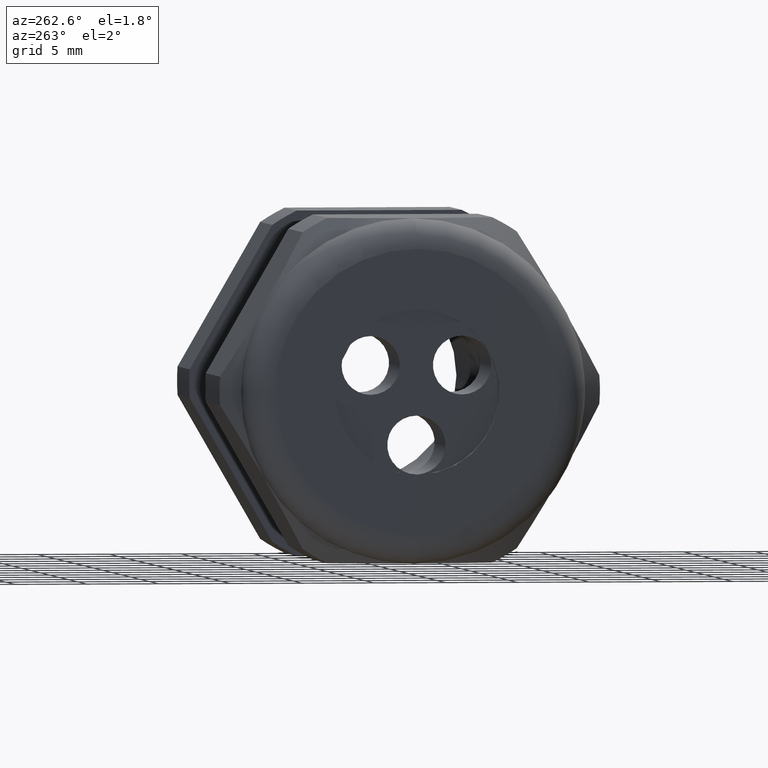
[diagram: clean part render]
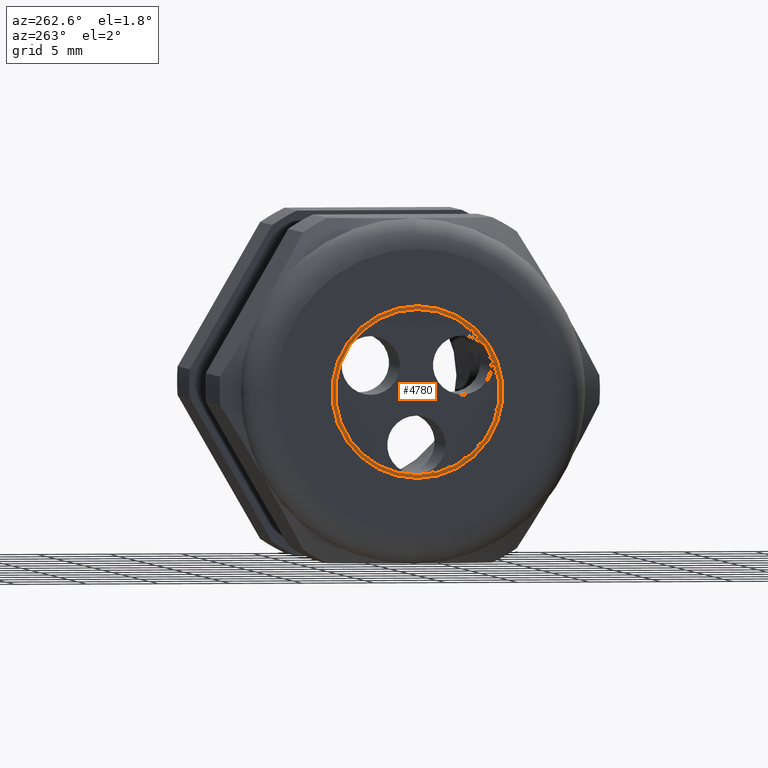
[diagram: same view with one face highlighted and labeled with its STEP entity id]
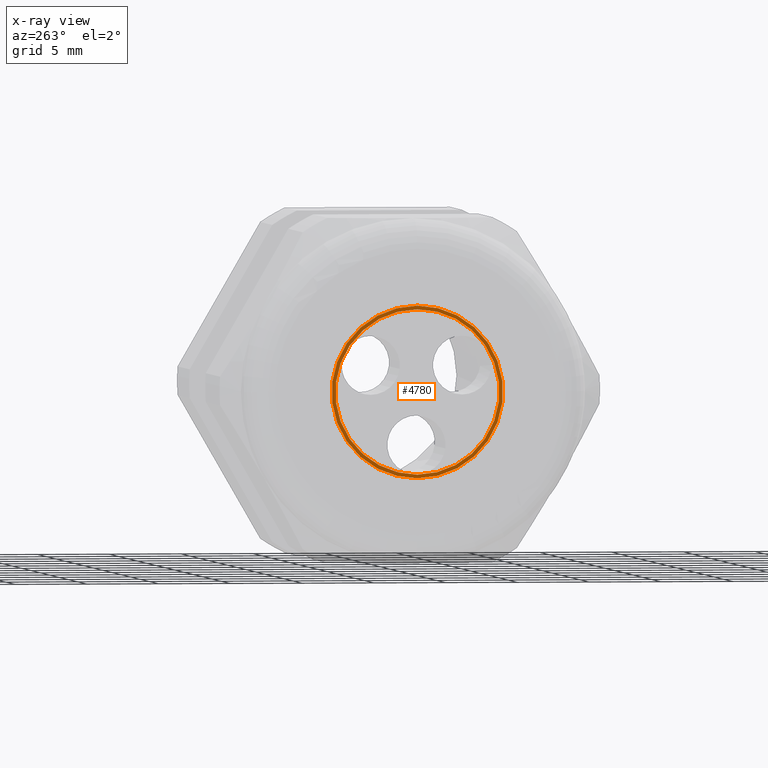
[diagram: x-ray of the same camera — body ghosted, the highlighted face saturated]
A machine part, auxiliary view. The second image highlights one B-rep face of the part: STEP entity #4780.
The next image is the same camera in x-ray: the body ghosted, the highlighted face saturated — about 0% of this face is hidden behind the body in this view.
In plain terms, the highlighted planar face has unit normal (-1, 0, 0).
Its self-contained STEP definition (entity closure, byte-faithful):
#1632 = DIRECTION ( 'NONE',  ( 0.0000000000000000000, 0.0000000000000000000, 1.000000000000000000 ) ) ;
#1633 = DIRECTION ( 'NONE',  ( -1.000000000000000000, 0.0000000000000000000, 0.0000000000000000000 ) ) ;
#1634 = AXIS2_PLACEMENT_3D ( 'NONE', #1640, #1633, #1632 ) ;
#1635 = CIRCLE ( 'NONE', #1634, 0.2249999999999999800 ) ;
#1640 = CARTESIAN_POINT ( 'NONE',  ( -1.370000000000000100, 0.0000000000000000000, 0.0000000000000000000 ) ) ;
#3187 = CARTESIAN_POINT ( 'NONE',  ( -1.370000000000000100, 0.0000000000000000000, 0.2349999999999999900 ) ) ;
#3188 = DIRECTION ( 'NONE',  ( 0.0000000000000000000, 0.0000000000000000000, 1.000000000000000000 ) ) ;
#3189 = DIRECTION ( 'NONE',  ( -1.000000000000000000, 0.0000000000000000000, 0.0000000000000000000 ) ) ;
#3190 = AXIS2_PLACEMENT_3D ( 'NONE', #3197, #3189, #3188 ) ;
#3191 = CIRCLE ( 'NONE', #3190, 0.2349999999999999900 ) ;
#3197 = CARTESIAN_POINT ( 'NONE',  ( -1.370000000000000100, 0.0000000000000000000, 0.0000000000000000000 ) ) ;
#3216 = DIRECTION ( 'NONE',  ( 0.0000000000000000000, 0.0000000000000000000, 1.000000000000000000 ) ) ;
#3217 = DIRECTION ( 'NONE',  ( -1.000000000000000000, 0.0000000000000000000, 0.0000000000000000000 ) ) ;
#3218 = CARTESIAN_POINT ( 'NONE',  ( -1.370000000000000100, 0.0000000000000000000, 0.0000000000000000000 ) ) ;
#3219 = AXIS2_PLACEMENT_3D ( 'NONE', #3218, #3217, #3216 ) ;
#3220 = CIRCLE ( 'NONE', #3219, 0.2349999999999999900 ) ;
#3255 = DIRECTION ( 'NONE',  ( 0.0000000000000000000, 0.0000000000000000000, 1.000000000000000000 ) ) ;
#3256 = DIRECTION ( 'NONE',  ( -1.000000000000000000, 0.0000000000000000000, 0.0000000000000000000 ) ) ;
#3257 = CARTESIAN_POINT ( 'NONE',  ( -1.370000000000000100, 0.0000000000000000000, 0.0000000000000000000 ) ) ;
#3258 = AXIS2_PLACEMENT_3D ( 'NONE', #3257, #3256, #3255 ) ;
#3259 = PLANE ( 'NONE',  #3258 ) ;
#3260 = FACE_OUTER_BOUND ( 'NONE', #3808, .T. ) ;
#3261 = FACE_BOUND ( 'NONE', #4757, .T. ) ;
#3296 = CARTESIAN_POINT ( 'NONE',  ( -1.370000000000000100, 2.877919977996279800E-017, -0.2349999999999999900 ) ) ;
#3382 = CARTESIAN_POINT ( 'NONE',  ( -1.370000000000000100, 2.755455298081544500E-017, -0.2249999999999999800 ) ) ;
#3383 = DIRECTION ( 'NONE',  ( 0.0000000000000000000, 0.0000000000000000000, 1.000000000000000000 ) ) ;
#3384 = DIRECTION ( 'NONE',  ( -1.000000000000000000, 0.0000000000000000000, 0.0000000000000000000 ) ) ;
#3385 = CARTESIAN_POINT ( 'NONE',  ( -1.370000000000000100, 0.0000000000000000000, 0.0000000000000000000 ) ) ;
#3386 = AXIS2_PLACEMENT_3D ( 'NONE', #3385, #3384, #3383 ) ;
#3387 = CIRCLE ( 'NONE', #3386, 0.2249999999999999800 ) ;
#3388 = CARTESIAN_POINT ( 'NONE',  ( -1.370000000000000100, 0.0000000000000000000, 0.2249999999999999800 ) ) ;
#3808 = EDGE_LOOP ( 'NONE', ( #3810, #3811 ) ) ;
#3809 = EDGE_CURVE ( 'NONE', #4841, #4844, #1635, .T. ) ;
#3810 = ORIENTED_EDGE ( 'NONE', *, *, #4746, .T. ) ;
#3811 = ORIENTED_EDGE ( 'NONE', *, *, #4768, .T. ) ;
#3817 = ORIENTED_EDGE ( 'NONE', *, *, #4842, .F. ) ;
#4746 = EDGE_CURVE ( 'NONE', #4751, #4795, #3191, .T. ) ;
#4747 = ORIENTED_EDGE ( 'NONE', *, *, #3809, .F. ) ;
#4751 = VERTEX_POINT ( 'NONE', #3187 ) ;
#4757 = EDGE_LOOP ( 'NONE', ( #4747, #3817 ) ) ;
#4768 = EDGE_CURVE ( 'NONE', #4795, #4751, #3220, .T. ) ;
#4780 = ADVANCED_FACE ( 'NONE', ( #3261, #3260 ), #3259, .T. ) ;
#4795 = VERTEX_POINT ( 'NONE', #3296 ) ;
#4841 = VERTEX_POINT ( 'NONE', #3388 ) ;
#4842 = EDGE_CURVE ( 'NONE', #4844, #4841, #3387, .T. ) ;
#4844 = VERTEX_POINT ( 'NONE', #3382 ) ;